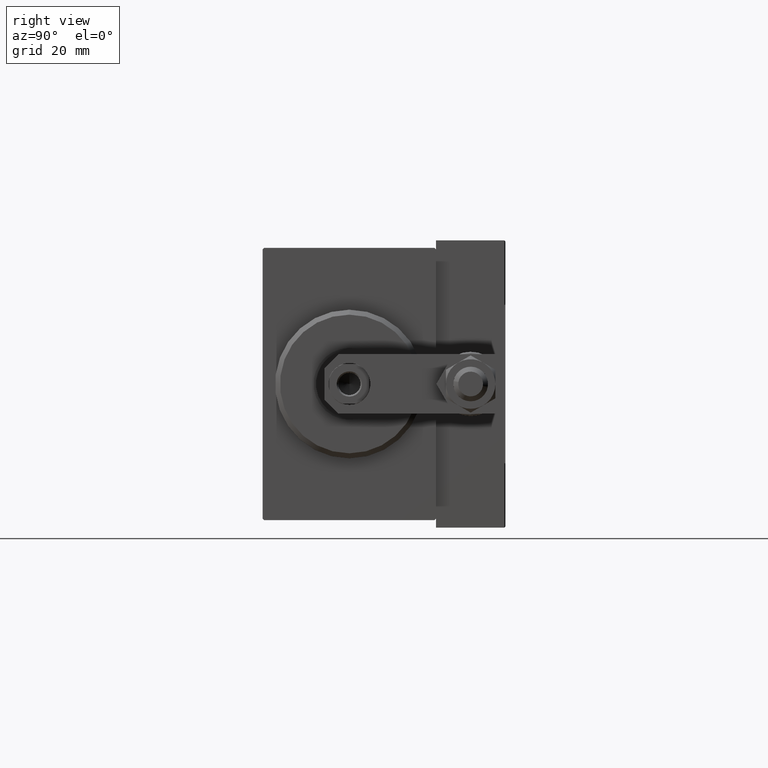
[diagram: clean part render]
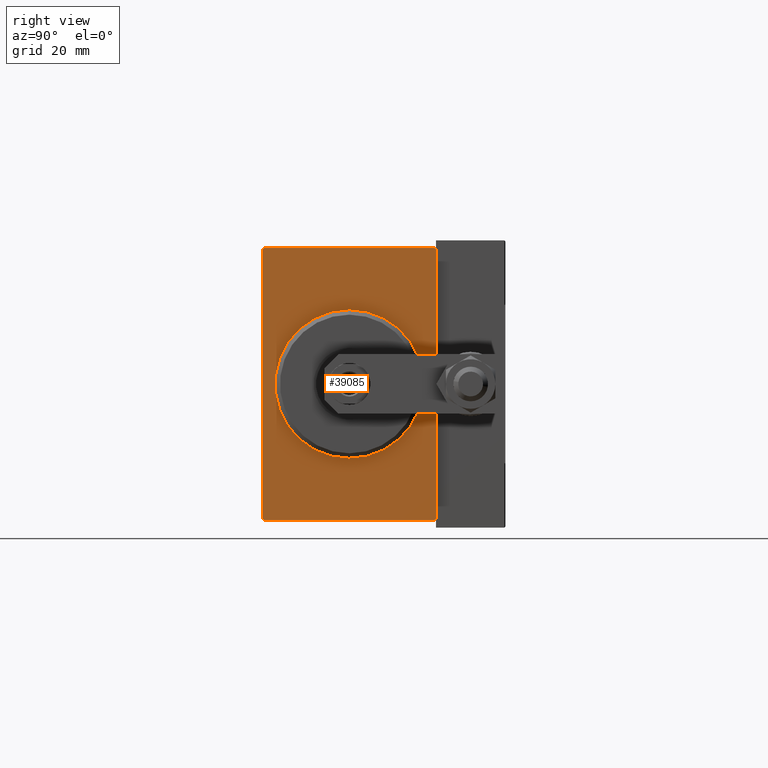
[diagram: same view with one face highlighted and labeled with its STEP entity id]
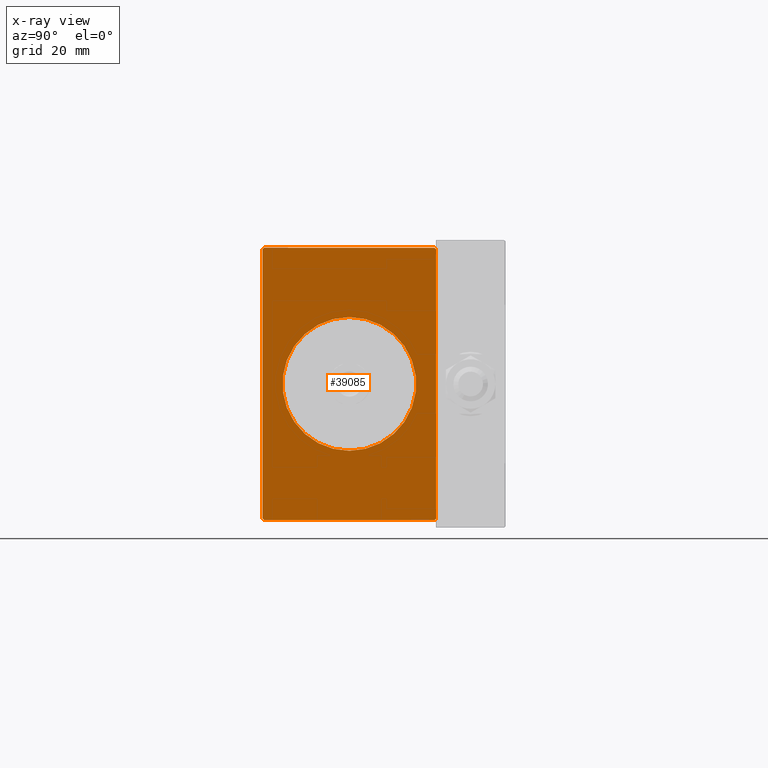
[diagram: x-ray of the same camera — body ghosted, the highlighted face saturated]
A machine part, right view. The second image highlights one B-rep face of the part: STEP entity #39085.
The next image is the same camera in x-ray: the body ghosted, the highlighted face saturated — about 0% of this face is hidden behind the body in this view.
In plain terms, the highlighted planar face has unit normal (-1, 0, 0).
Its self-contained STEP definition (entity closure, byte-faithful):
#18 = AXIS2_PLACEMENT_3D ( 'NONE', #45347, #10734, #26152 ) ;
#784 = LINE ( 'NONE', #28575, #10913 ) ;
#1764 = CARTESIAN_POINT ( 'NONE',  ( 0.000000000000000000, 0.000000000000000000, 0.000000000000000000 ) ) ;
#2054 = VERTEX_POINT ( 'NONE', #11839 ) ;
#2722 = EDGE_CURVE ( 'NONE', #20195, #2054, #16417, .T. ) ;
#3580 = DIRECTION ( 'NONE',  ( 0.000000000000000000, -1.000000000000000000, -1.982541115402065356E-16 ) ) ;
#4085 = EDGE_CURVE ( 'NONE', #20195, #13241, #42924, .T. ) ;
#4620 = EDGE_CURVE ( 'NONE', #31899, #40391, #29061, .T. ) ;
#5021 = CARTESIAN_POINT ( 'NONE',  ( 0.000000000000000000, -17.19999999999999574, -27.50000000000000000 ) ) ;
#6053 = CIRCLE ( 'NONE', #26235, 13.49999999999999822 ) ;
#6442 = LINE ( 'NONE', #10992, #26537 ) ;
#6795 = ORIENTED_EDGE ( 'NONE', *, *, #34575, .T. ) ;
#7583 = LINE ( 'NONE', #30098, #28765 ) ;
#10734 = DIRECTION ( 'NONE',  ( 1.000000000000000000, 0.000000000000000000, 0.000000000000000000 ) ) ;
#10875 = VECTOR ( 'NONE', #48818, 1000.000000000000000 ) ;
#10913 = VECTOR ( 'NONE', #12907, 999.9999999999998863 ) ;
#10992 = CARTESIAN_POINT ( 'NONE',  ( 0.000000000000000000, -17.49999999999999645, 27.19999999999998508 ) ) ;
#11438 = CARTESIAN_POINT ( 'NONE',  ( 0.000000000000000000, 17.20000000000000284, 27.50000000000000000 ) ) ;
#11471 = CARTESIAN_POINT ( 'NONE',  ( 0.000000000000000000, -17.49999999999999645, 27.19999999999998508 ) ) ;
#11676 = EDGE_CURVE ( 'NONE', #17664, #42934, #16484, .T. ) ;
#11839 = CARTESIAN_POINT ( 'NONE',  ( 0.000000000000000000, 17.20000000000000284, -27.50000000000000355 ) ) ;
#11905 = DIRECTION ( 'NONE',  ( 0.000000000000000000, -0.7071067811865393571, -0.7071067811865556774 ) ) ;
#12757 = ORIENTED_EDGE ( 'NONE', *, *, #46380, .T. ) ;
#12907 = DIRECTION ( 'NONE',  ( -0.000000000000000000, 0.7071067811865515695, -0.7071067811865435759 ) ) ;
#13241 = VERTEX_POINT ( 'NONE', #24232 ) ;
#13790 = ORIENTED_EDGE ( 'NONE', *, *, #19702, .T. ) ;
#14427 = ORIENTED_EDGE ( 'NONE', *, *, #11676, .T. ) ;
#16311 = CARTESIAN_POINT ( 'NONE',  ( 0.000000000000000000, 0.000000000000000000, 13.49999999999999822 ) ) ;
#16417 = LINE ( 'NONE', #35899, #37088 ) ;
#16484 = LINE ( 'NONE', #47313, #25110 ) ;
#17163 = DIRECTION ( 'NONE',  ( 0.000000000000000000, 0.000000000000000000, -1.000000000000000000 ) ) ;
#17226 = VERTEX_POINT ( 'NONE', #11438 ) ;
#17575 = EDGE_LOOP ( 'NONE', ( #27352, #6795, #31623, #26749, #36188, #14427, #41244, #12757 ) ) ;
#17664 = VERTEX_POINT ( 'NONE', #5021 ) ;
#19702 = EDGE_CURVE ( 'NONE', #40391, #31899, #6053, .T. ) ;
#19780 = CARTESIAN_POINT ( 'NONE',  ( 0.000000000000000000, 17.50000000000000355, -27.19999999999999574 ) ) ;
#20195 = VERTEX_POINT ( 'NONE', #19780 ) ;
#22456 = FACE_BOUND ( 'NONE', #49557, .T. ) ;
#22777 = LINE ( 'NONE', #38211, #37781 ) ;
#23064 = VERTEX_POINT ( 'NONE', #11471 ) ;
#24232 = CARTESIAN_POINT ( 'NONE',  ( 0.000000000000000000, 17.49999999999999645, 27.20000000000000995 ) ) ;
#24461 = CARTESIAN_POINT ( 'NONE',  ( 0.000000000000000000, 17.50000000000000355, -27.50000000000000355 ) ) ;
#25110 = VECTOR ( 'NONE', #45042, 1000.000000000000114 ) ;
#26152 = DIRECTION ( 'NONE',  ( 0.000000000000000000, 0.000000000000000000, -1.000000000000000000 ) ) ;
#26235 = AXIS2_PLACEMENT_3D ( 'NONE', #1764, #40430, #17163 ) ;
#26537 = VECTOR ( 'NONE', #48388, 1000.000000000000114 ) ;
#26749 = ORIENTED_EDGE ( 'NONE', *, *, #2722, .T. ) ;
#27352 = ORIENTED_EDGE ( 'NONE', *, *, #44537, .F. ) ;
#28183 = CARTESIAN_POINT ( 'NONE',  ( 0.000000000000000000, -17.49999999999999645, -27.19999999999999929 ) ) ;
#28575 = CARTESIAN_POINT ( 'NONE',  ( 0.000000000000000000, 17.20000000000000284, 27.50000000000000000 ) ) ;
#28765 = VECTOR ( 'NONE', #30341, 1000.000000000000000 ) ;
#29061 = CIRCLE ( 'NONE', #18, 13.49999999999999822 ) ;
#29749 = CARTESIAN_POINT ( 'NONE',  ( 0.000000000000000000, 1.653273178848926669E-15, -13.49999999999999822 ) ) ;
#30098 = CARTESIAN_POINT ( 'NONE',  ( 0.000000000000000000, -17.49999999999999645, -27.50000000000000000 ) ) ;
#30341 = DIRECTION ( 'NONE',  ( 0.000000000000000000, 1.000000000000000000, -9.912705577010325549E-17 ) ) ;
#31071 = DIRECTION ( 'NONE',  ( 1.000000000000000000, 0.000000000000000000, 0.000000000000000000 ) ) ;
#31623 = ORIENTED_EDGE ( 'NONE', *, *, #4085, .F. ) ;
#31899 = VERTEX_POINT ( 'NONE', #29749 ) ;
#33379 = EDGE_CURVE ( 'NONE', #23064, #42934, #37468, .T. ) ;
#34118 = CARTESIAN_POINT ( 'NONE',  ( 0.000000000000000000, 0.000000000000000000, 0.000000000000000000 ) ) ;
#34369 = PLANE ( 'NONE',  #39313 ) ;
#34575 = EDGE_CURVE ( 'NONE', #17226, #13241, #784, .T. ) ;
#35899 = CARTESIAN_POINT ( 'NONE',  ( 0.000000000000000000, 17.50000000000000355, -27.19999999999999574 ) ) ;
#36188 = ORIENTED_EDGE ( 'NONE', *, *, #37638, .F. ) ;
#36303 = VECTOR ( 'NONE', #39869, 1000.000000000000000 ) ;
#37088 = VECTOR ( 'NONE', #11905, 1000.000000000000000 ) ;
#37468 = LINE ( 'NONE', #45040, #10875 ) ;
#37638 = EDGE_CURVE ( 'NONE', #17664, #2054, #7583, .T. ) ;
#37781 = VECTOR ( 'NONE', #3580, 1000.000000000000000 ) ;
#38211 = CARTESIAN_POINT ( 'NONE',  ( 0.000000000000000000, 17.49999999999999645, 27.50000000000000000 ) ) ;
#39085 = ADVANCED_FACE ( 'NONE', ( #22456, #45713 ), #34369, .F. ) ;
#39313 = AXIS2_PLACEMENT_3D ( 'NONE', #34118, #31071, #46954 ) ;
#39869 = DIRECTION ( 'NONE',  ( 0.000000000000000000, -1.261617073437677752E-16, 1.000000000000000000 ) ) ;
#40391 = VERTEX_POINT ( 'NONE', #16311 ) ;
#40430 = DIRECTION ( 'NONE',  ( 1.000000000000000000, 0.000000000000000000, 0.000000000000000000 ) ) ;
#41244 = ORIENTED_EDGE ( 'NONE', *, *, #33379, .F. ) ;
#42924 = LINE ( 'NONE', #24461, #36303 ) ;
#42934 = VERTEX_POINT ( 'NONE', #28183 ) ;
#43088 = ORIENTED_EDGE ( 'NONE', *, *, #4620, .T. ) ;
#44200 = VERTEX_POINT ( 'NONE', #49372 ) ;
#44537 = EDGE_CURVE ( 'NONE', #17226, #44200, #22777, .T. ) ;
#45040 = CARTESIAN_POINT ( 'NONE',  ( 0.000000000000000000, -17.49999999999999645, 27.49999999999999289 ) ) ;
#45042 = DIRECTION ( 'NONE',  ( -0.000000000000000000, -0.7071067811865474617, 0.7071067811865474617 ) ) ;
#45347 = CARTESIAN_POINT ( 'NONE',  ( 0.000000000000000000, 0.000000000000000000, 0.000000000000000000 ) ) ;
#45713 = FACE_OUTER_BOUND ( 'NONE', #17575, .T. ) ;
#46380 = EDGE_CURVE ( 'NONE', #23064, #44200, #6442, .T. ) ;
#46954 = DIRECTION ( 'NONE',  ( 0.000000000000000000, 0.000000000000000000, -1.000000000000000000 ) ) ;
#47313 = CARTESIAN_POINT ( 'NONE',  ( 0.000000000000000000, -17.19999999999999574, -27.50000000000000000 ) ) ;
#48388 = DIRECTION ( 'NONE',  ( -0.000000000000000000, 0.7071067811865474617, 0.7071067811865474617 ) ) ;
#48818 = DIRECTION ( 'NONE',  ( 0.000000000000000000, 0.000000000000000000, -1.000000000000000000 ) ) ;
#49372 = CARTESIAN_POINT ( 'NONE',  ( 0.000000000000000000, -17.19999999999998863, 27.49999999999999289 ) ) ;
#49557 = EDGE_LOOP ( 'NONE', ( #13790, #43088 ) ) ;